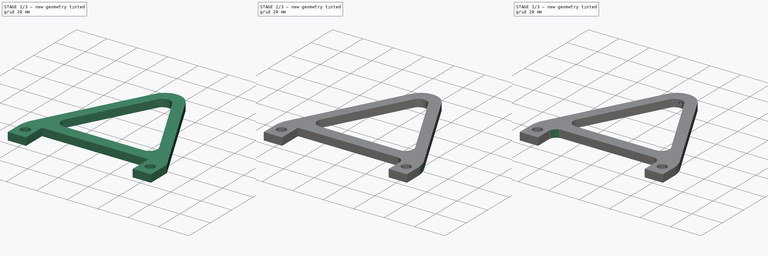
[diagram: build sequence overview — one tinted view per stage of 3, left to right]
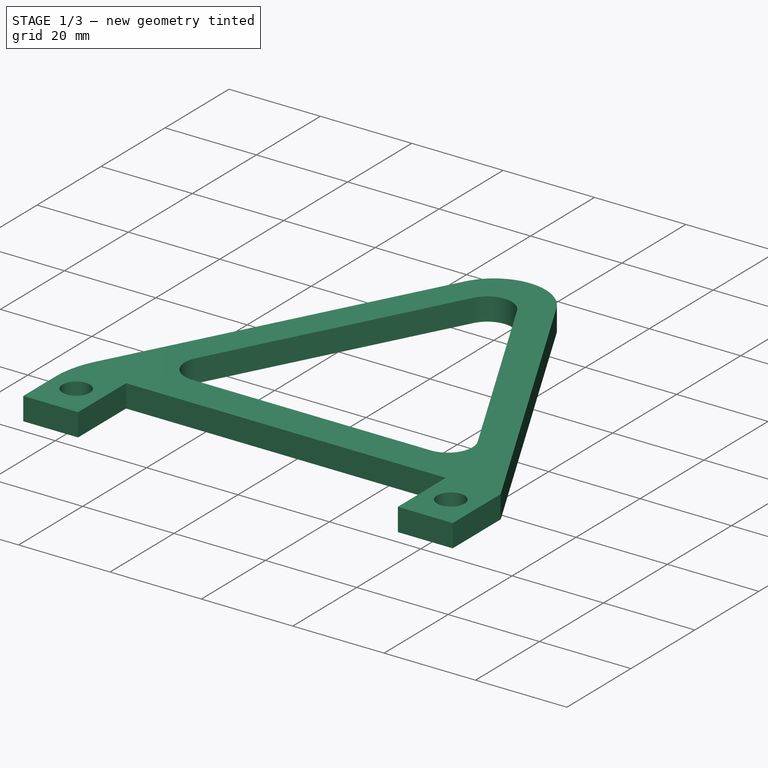
[diagram: stage 1 of 3 — iso view after this stage's code; geometry added in this stage tinted green]
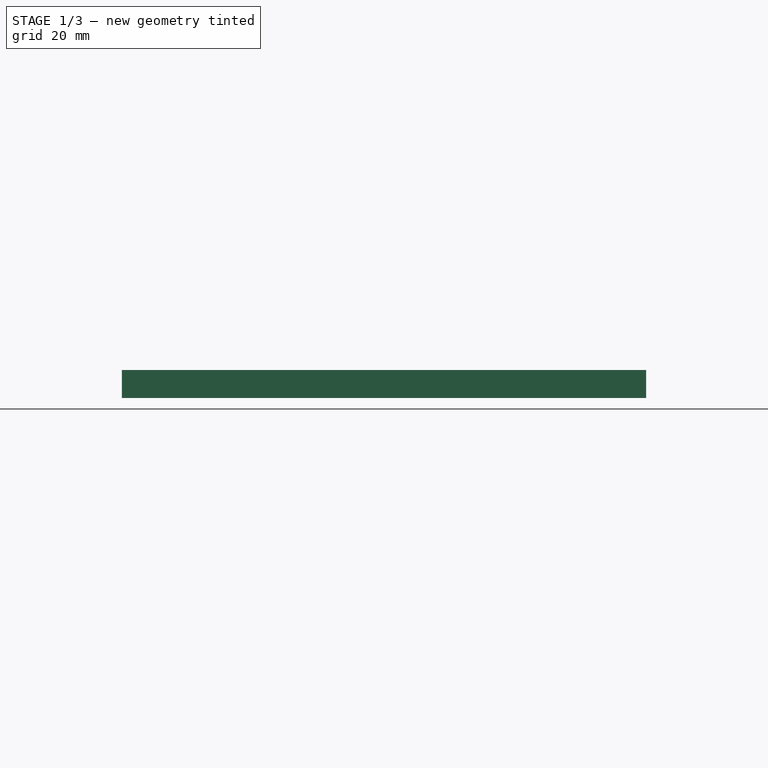
[diagram: stage 1 of 3 — front view after this stage's code; geometry added in this stage tinted green]
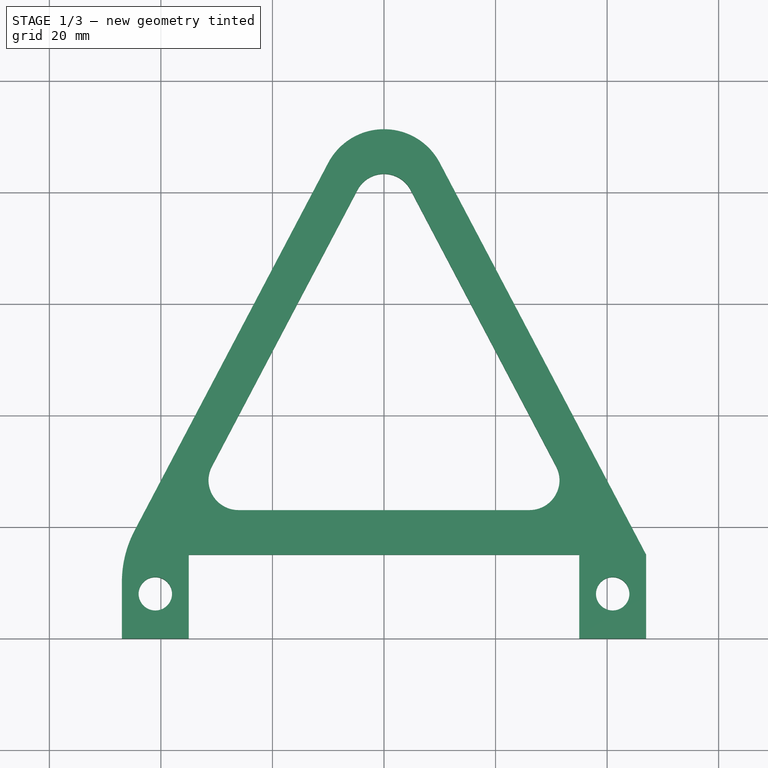
[diagram: stage 1 of 3 — top view after this stage's code; geometry added in this stage tinted green]
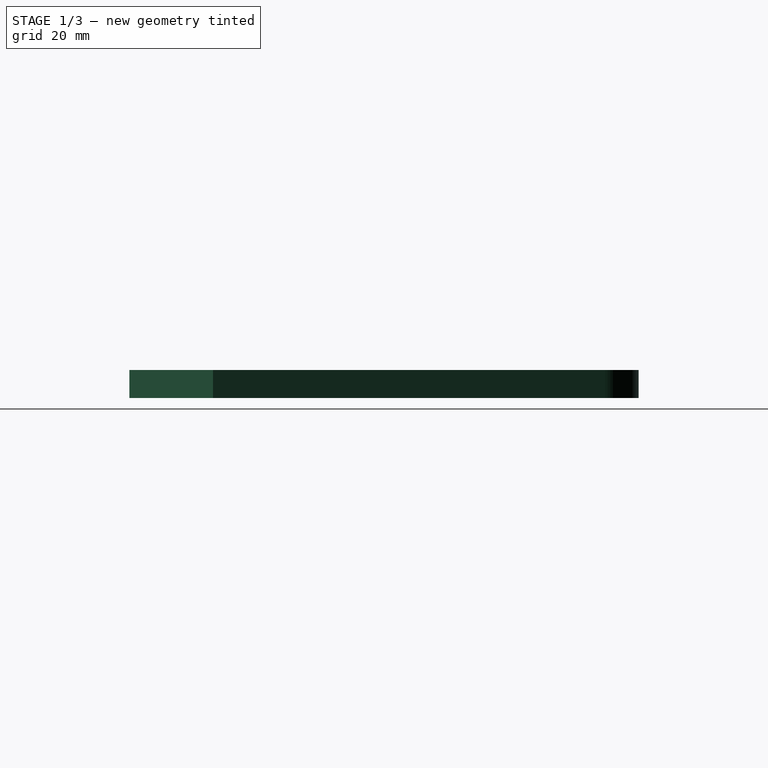
[diagram: stage 1 of 3 — right view after this stage's code; geometry added in this stage tinted green]
FCSTD DOCUMENT  (FreeCAD 0.20R29603 (Git))
Label: lamp hanger
License: All rights reserved
LicenseURL: http://en.wikipedia.org/wiki/All_rights_reserved
objects: PartDesign::Fillet×4, Sketcher::SketchObject×2, PartDesign::Pad×1, PartDesign::Pocket×1, PartDesign::Body×1
note: 15 computed .brp shape members not serialized (recipe doc carries the construction recipe); baked Part::Feature solids carry a one-line shape summary decoded from their .brp

FEATURE [Sketcher::SketchObject] Sketch
  FullyConstrained = true
  MapMode = 5
  Support = -> [XY_Plane]
  sketch-geometry (23):
    g0: LineSegment StartX=10 StartY=5.26573 StartZ=0 EndX=47 EndY=-65 EndZ=0
    g1: LineSegment StartX=47 StartY=-65 StartZ=0 EndX=47 EndY=-80 EndZ=0
    g2: LineSegment StartX=47 StartY=-80 StartZ=0 EndX=35 EndY=-80 EndZ=0
    g3: LineSegment StartX=35 StartY=-80 StartZ=0 EndX=35 EndY=-65 EndZ=0
    g4: LineSegment StartX=35 StartY=-65 StartZ=0 EndX=-35 EndY=-65 EndZ=0
    g5: LineSegment StartX=-35 StartY=-65 StartZ=0 EndX=-35 EndY=-80 EndZ=0
    g6: LineSegment StartX=-35 StartY=-80 StartZ=0 EndX=-47 EndY=-80 EndZ=0
    g7: LineSegment StartX=-47 StartY=-80 StartZ=0 EndX=-47 EndY=-65 EndZ=0
    g8: LineSegment StartX=-47 StartY=-65 StartZ=0 EndX=-10 EndY=5.26573 EndZ=0
    g9: Circle CenterX=-41 CenterY=-72 CenterZ=0 NormalX=0 NormalY=0 NormalZ=1 AngleXU=0 Radius=3
    g10: Circle CenterX=41 CenterY=-72 CenterZ=0 NormalX=0 NormalY=0 NormalZ=1 AngleXU=0 Radius=3
    g11: GeomPoint X=-41 Y=-80 Z=0
    g12: ArcOfCircle CenterX=0 CenterY=0 CenterZ=0 NormalX=0 NormalY=0 NormalZ=1 AngleXU=0 Radius=11.3017 StartAngle=0.484679 EndAngle=2.65691
    g13: LineSegment StartX=-4.75956 StartY=0.428831 StartZ=0 EndX=-30.8478 EndY=-49.1147 EndZ=0
    g14: LineSegment StartX=-26.0882 StartY=-57 StartZ=0 EndX=26.0882 EndY=-57 EndZ=0
    g15: LineSegment StartX=30.8478 StartY=-49.1147 StartZ=0 EndX=4.75956 EndY=0.428831 EndZ=0
    g16: ArcOfCircle CenterX=7e-16 CenterY=-2.07742 CenterZ=0 NormalX=0 NormalY=0 NormalZ=1 AngleXU=0 Radius=5.3791 StartAngle=0.484679 EndAngle=2.65691
    g17: GeomPoint X=0 Y=3.30168 Z=0
    g18: GeomPoint X=0 Y=11.3017 Z=0
    g19: ArcOfCircle CenterX=-26.0882 CenterY=-51.6209 CenterZ=0 NormalX=0 NormalY=0 NormalZ=1 AngleXU=0 Radius=5.3791 StartAngle=2.65691 EndAngle=4.71239
    g20: GeomPoint X=-35 Y=-57 Z=0
    g21: ArcOfCircle CenterX=26.0882 CenterY=-51.6209 CenterZ=0 NormalX=0 NormalY=0 NormalZ=1 AngleXU=0 Radius=5.3791 StartAngle=4.71239 EndAngle=6.76786
    g22: GeomPoint X=35 Y=-57 Z=0
  constraints (52):
    c: Coincident(g0,g1)
    c: Vertical(g1)
    c: Coincident(g1,g2)
    c: Horizontal(g2)
    c: Coincident(g2,g3)
    c: Coincident(g3,g4)
    c: Coincident(g4,g5)
    c: Coincident(g5,g6)
    c: Horizontal(g6)
    c: Coincident(g6,g7)
    c: Vertical(g7)
    c: Coincident(g7,g8)
    c: Symmetric(g5,g2,g-2)
    c: Horizontal(g4,g7)
    c: Symmetric(g4,g3,g-2)
    c: Symmetric(g0,g7,g-2)
    c: DistanceX(g6,g6) = 12
    c: Equal(g9,g10)
    c: Symmetric(g6,g5,g11)
    c: Vertical(g9,g11)
    c: Diameter(g9) = 6
    c: Symmetric(g10,g9,g-2)
    c: DistanceY(g11,g9) = 8
    c: DistanceY(g7,g7) = 15
    c: DistanceY(g5,g-1) = 80
    c: Tangent(g8,g12) = 1.5708
    c: Tangent(g0,g12) = 1.5708
    c: DistanceX(g8,g0) = 20
    c: Coincident(g12,g-1)
    c: Parallel(g13,g8)
    c: Symmetric(g20,g22,g-2)
    c: Tangent(g13,g16) = -1.5708
    c: Tangent(g15,g16) = -1.5708
    c: Symmetric(g13,g15,g-2)
    c: Vertical(g20,g4)
    c: DistanceY(g4,g20) = 8
    c: PointOnObject(g17,g-2)
    c: PointOnObject(g18,g-2)
    c: PointOnObject(g18,g12)
    c: PointOnObject(g17,g16)
    c: DistanceY(g17,g18) = 8
    c: DistanceX(g9,g10) = 82
    c: Vertical(g5)
    c: PointOnObject(g20,g14)
    c: Tangent(g13,g19) = -1.5708
    c: Tangent(g14,g19) = -1.5708
    c: PointOnObject(g22,g15)
    c: PointOnObject(g22,g14)
    c: Tangent(g15,g21) = -1.5708
    c: Tangent(g14,g21) = -1.5708
    c: Equal(g21,g19)
    c: Equal(g19,g16)
FEATURE [PartDesign::Pad] Pad
  Direction = (0,0,1)
  Length = 5
  Length2 = 10
  Midplane = true
  Profile = -> Sketch
  ReferenceAxis = -> Sketch [N_Axis]
  Type = 0
FEATURE [PartDesign::Fillet] Fillet
  Base = -> Pad [Edge23]
  BaseFeature = -> Pad
  Radius = 20
  SupportTransform = false
  UseAllEdges = false
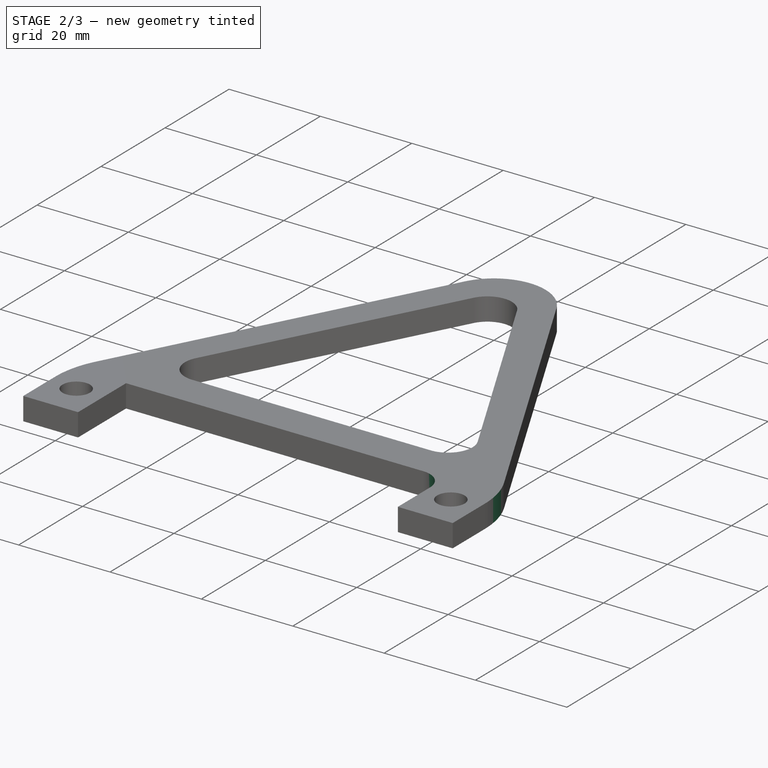
[diagram: stage 2 of 3 — iso view after this stage's code; geometry added in this stage tinted green]
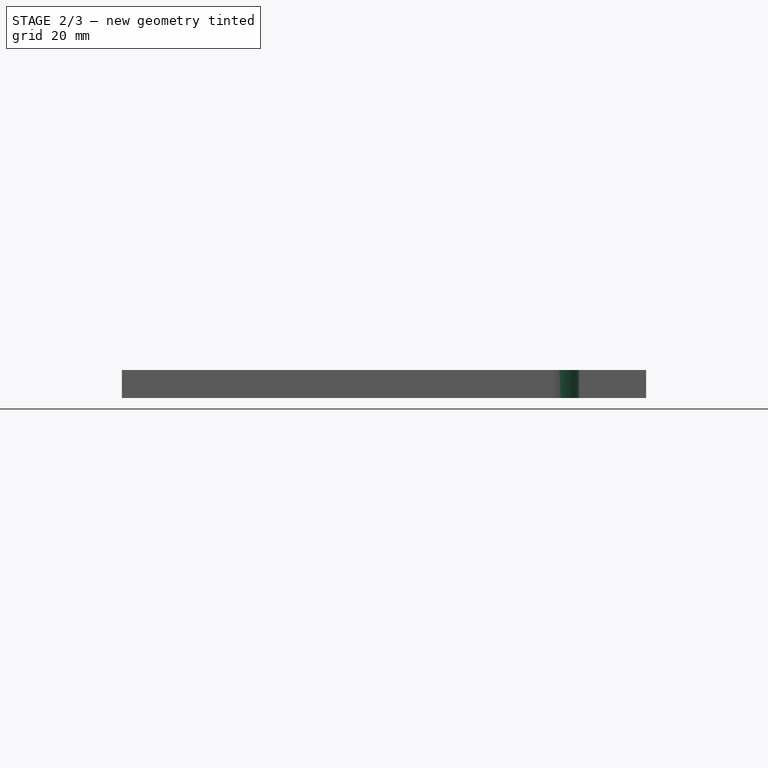
[diagram: stage 2 of 3 — front view after this stage's code; geometry added in this stage tinted green]
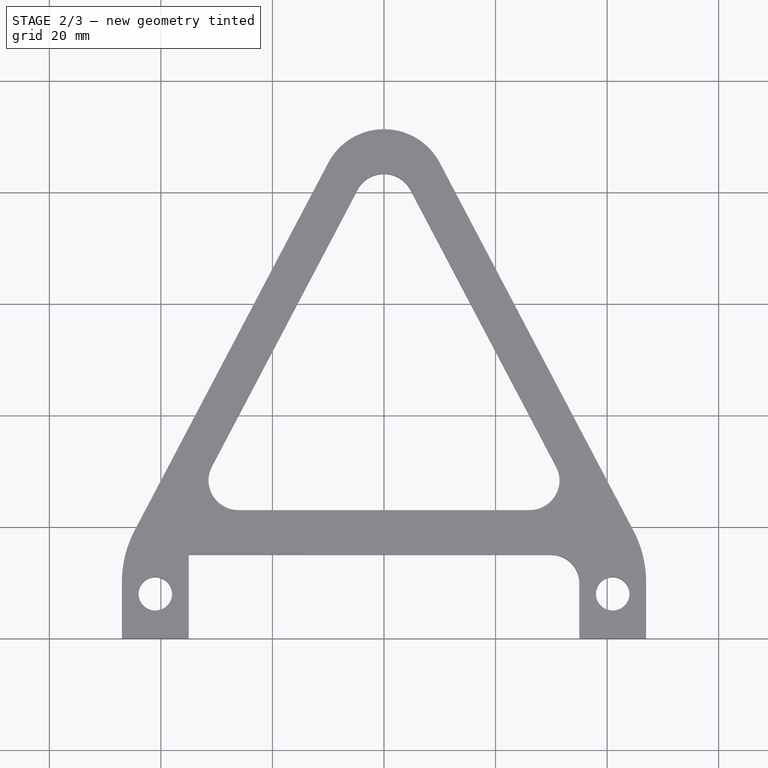
[diagram: stage 2 of 3 — top view after this stage's code; geometry added in this stage tinted green]
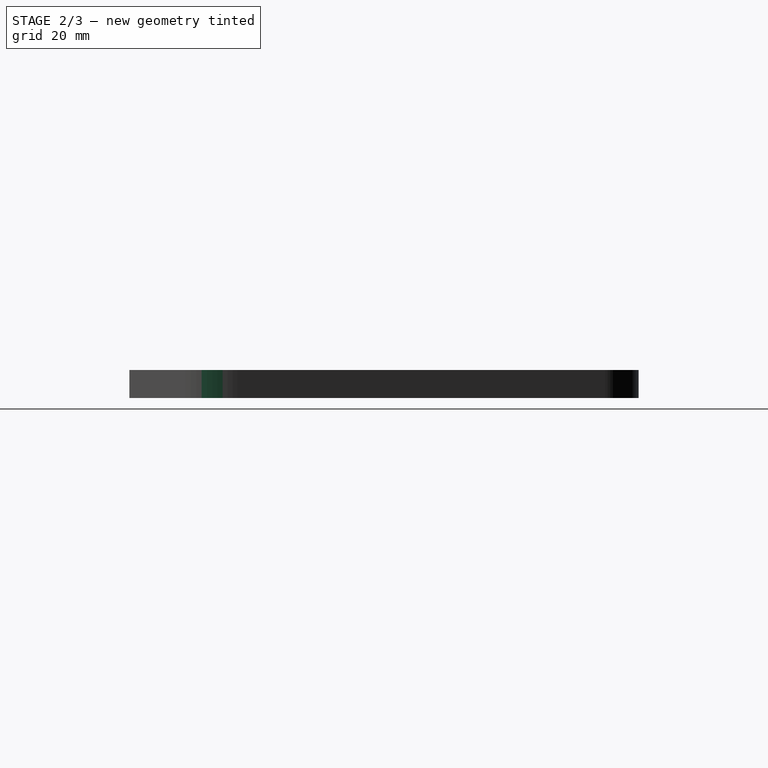
[diagram: stage 2 of 3 — right view after this stage's code; geometry added in this stage tinted green]
FEATURE [PartDesign::Fillet] Fillet001
  Base = -> Fillet [Edge47]
  BaseFeature = -> Fillet
  Radius = 20
  SupportTransform = false
  UseAllEdges = false
FEATURE [PartDesign::Fillet] Fillet002
  Base = -> Fillet001 [Edge36]
  BaseFeature = -> Fillet001
  Radius = 5
  SupportTransform = false
  UseAllEdges = false
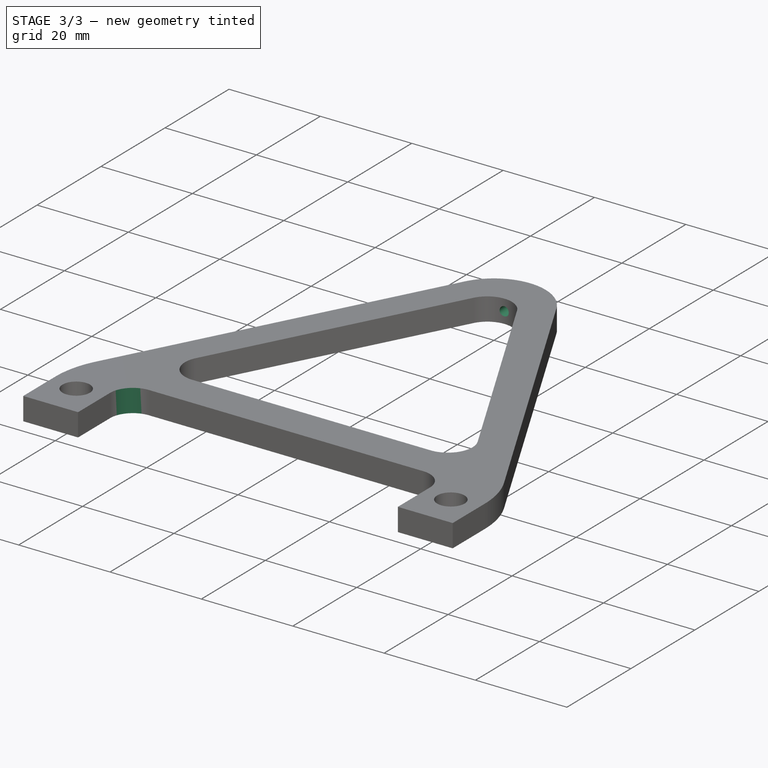
[diagram: stage 3 of 3 — iso view after this stage's code; geometry added in this stage tinted green]
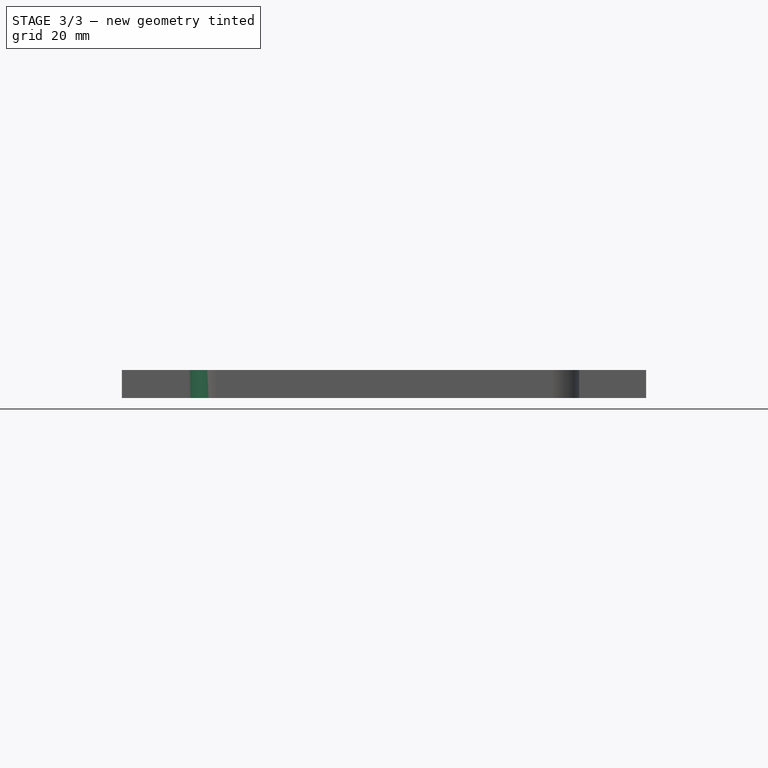
[diagram: stage 3 of 3 — front view after this stage's code; geometry added in this stage tinted green]
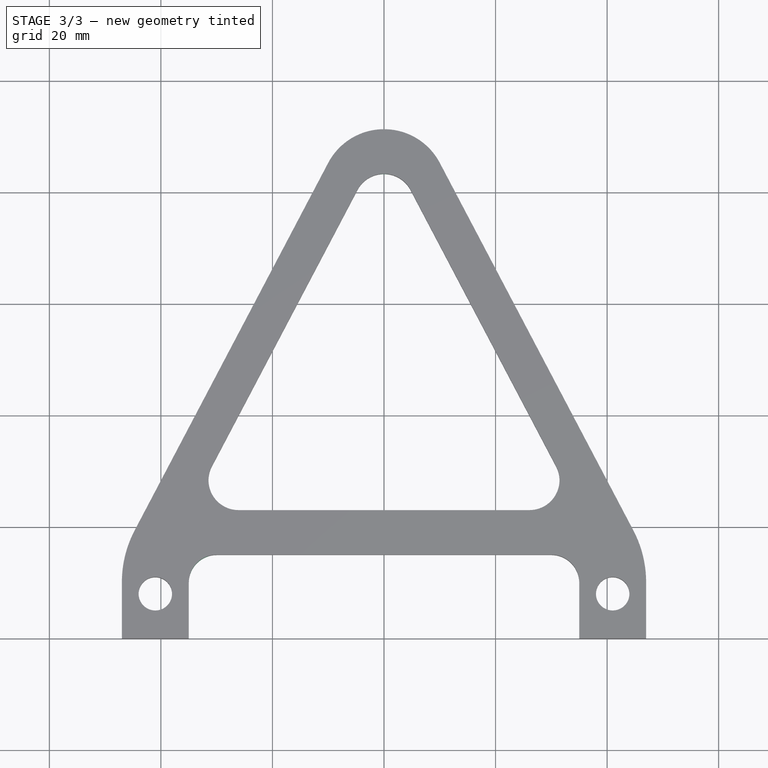
[diagram: stage 3 of 3 — top view after this stage's code; geometry added in this stage tinted green]
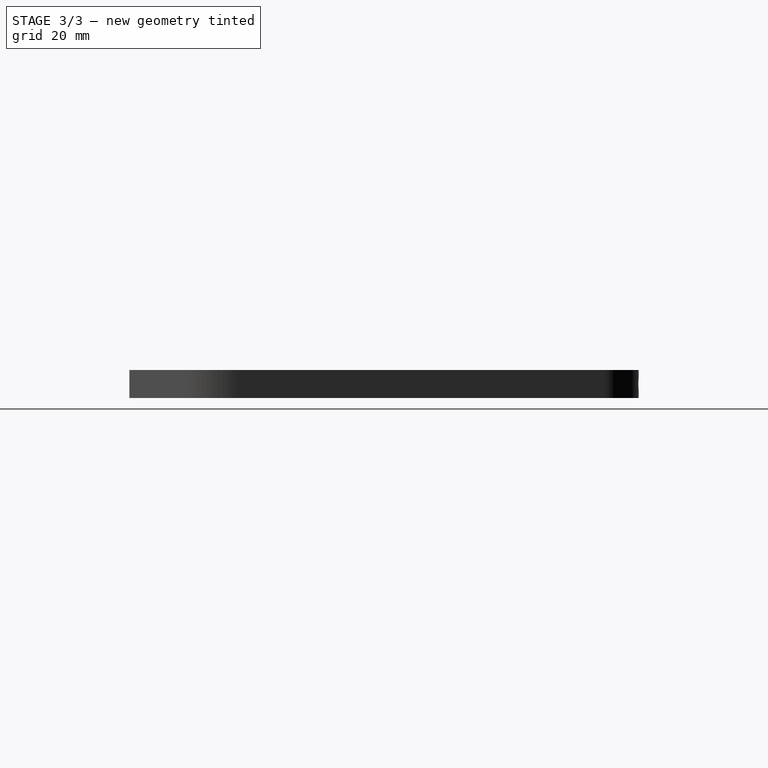
[diagram: stage 3 of 3 — right view after this stage's code; geometry added in this stage tinted green]
FEATURE [PartDesign::Fillet] Fillet003
  Base = -> Fillet002 [Edge29]
  BaseFeature = -> Fillet002
  Radius = 5
  SupportTransform = false
  UseAllEdges = false
FEATURE [Sketcher::SketchObject] Sketch001
  FullyConstrained = true
  MapMode = 5
  Placement = pos=(0,0,0) rot=(1,0,0;1.5708rad)
  Support = -> [XZ_Plane]
  sketch-geometry (1):
    g0: Circle CenterX=0 CenterY=0 CenterZ=0 NormalX=0 NormalY=0 NormalZ=1 AngleXU=0 Radius=1
  constraints (2):
    c: Diameter(g0) = 2
    c: Coincident(g0,g-1)
FEATURE [PartDesign::Pocket] Pocket
  BaseFeature = -> Fillet003
  Direction = (0,1,-2e-16)
  Length = 0
  Length2 = 5
  Profile = -> Sketch001
  ReferenceAxis = -> Sketch001 [N_Axis]
  Type = 3
  UpToFace = -> Fillet003 [Face15]
FEATURE [PartDesign::Body] Body
  Group = -> [Sketch,Pad,Fillet,Fillet001,Fillet002,Fillet003,Sketch001,Pocket]
  Origin = -> Origin
  Tip = -> Pocket
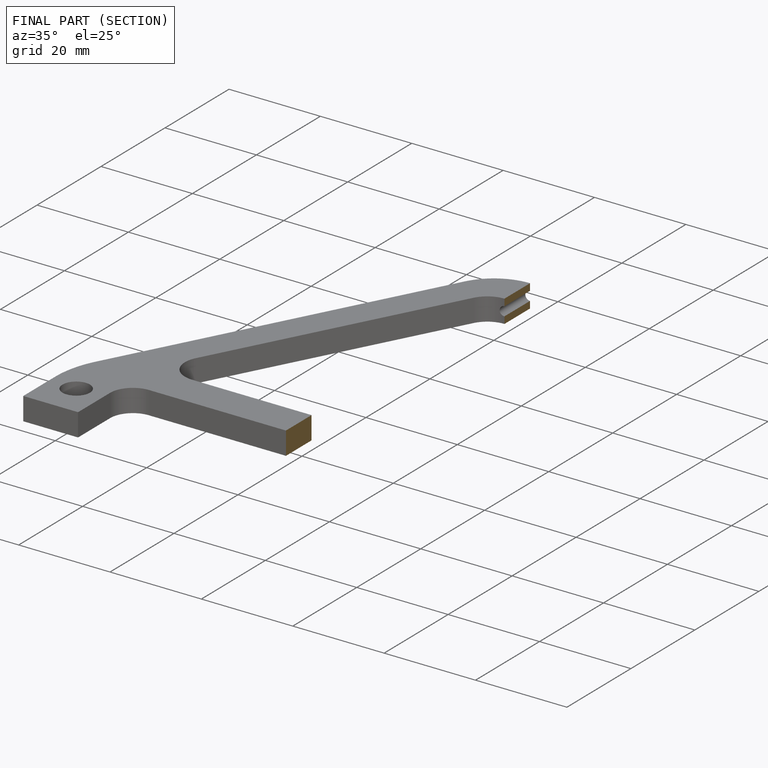
[diagram: finished part — half-section view (interior)]
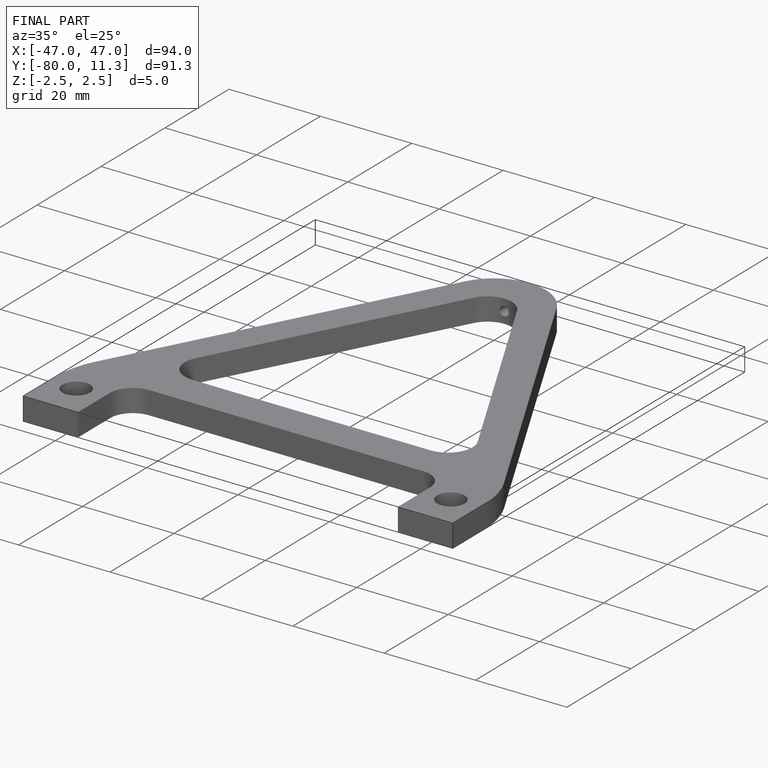
[diagram: finished part — iso view with bounding-box wireframe]
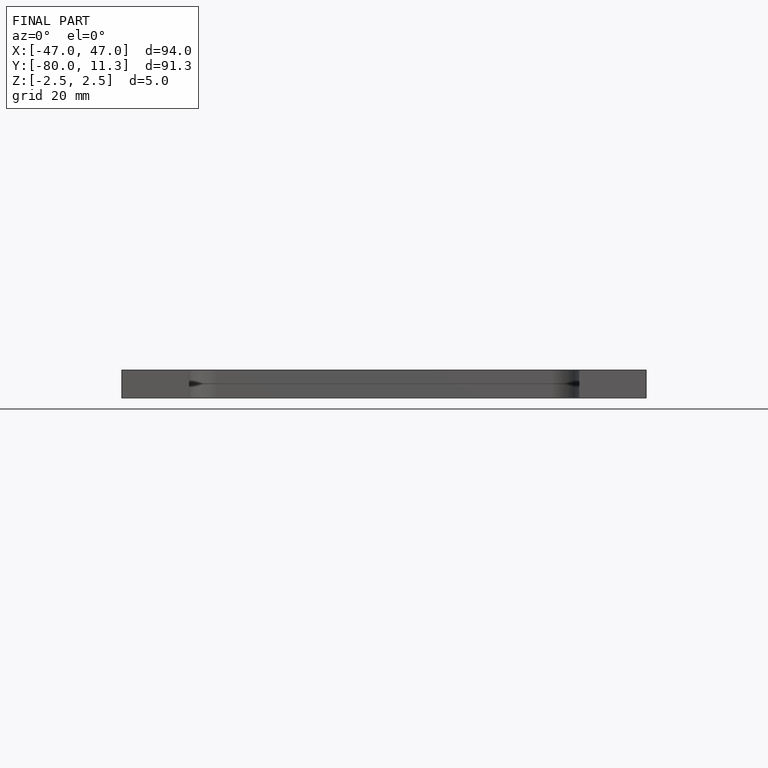
[diagram: finished part — front view with bounding-box wireframe]
